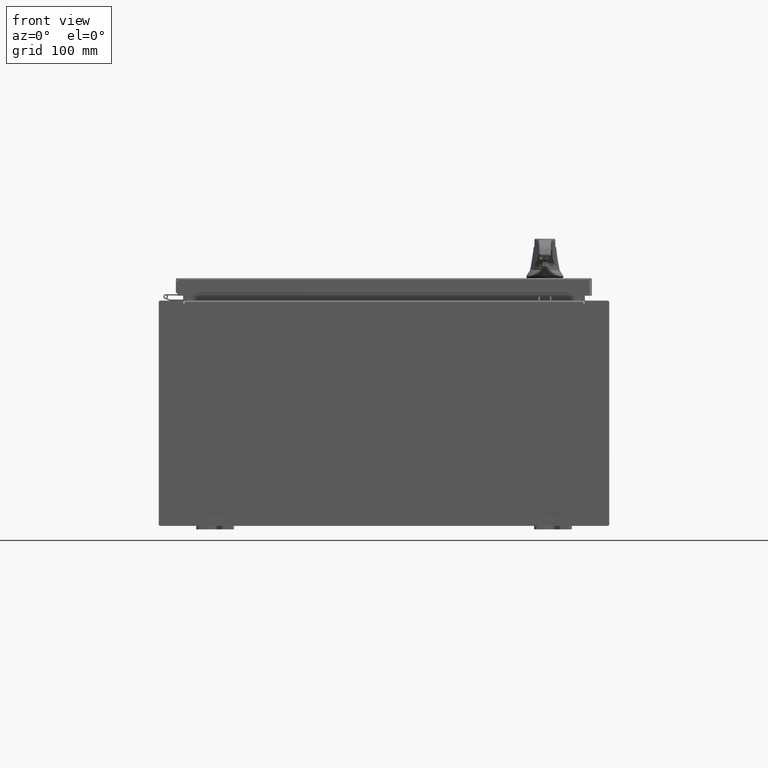
[diagram: clean part render]
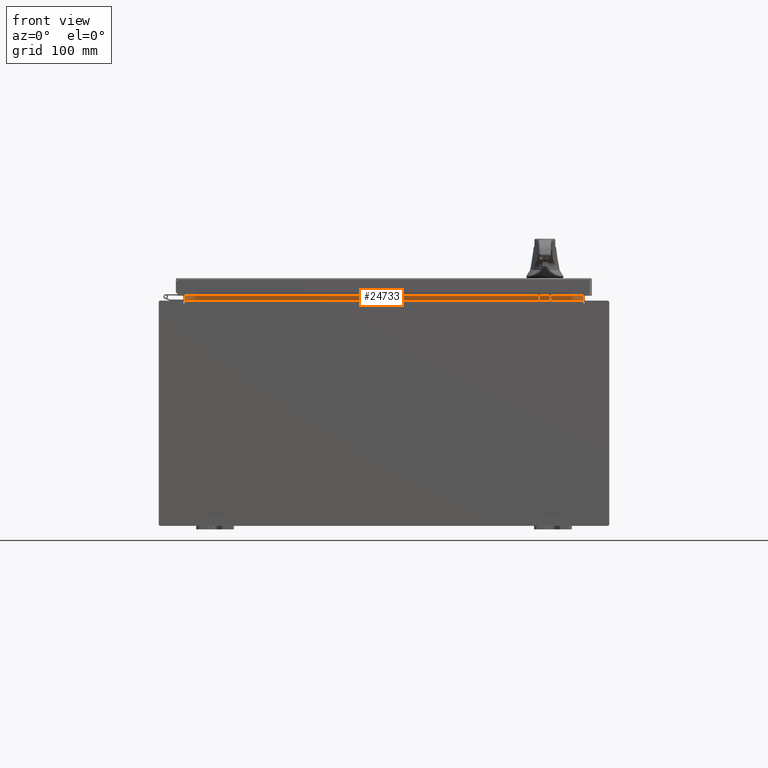
[diagram: same view with one face highlighted and labeled with its STEP entity id]
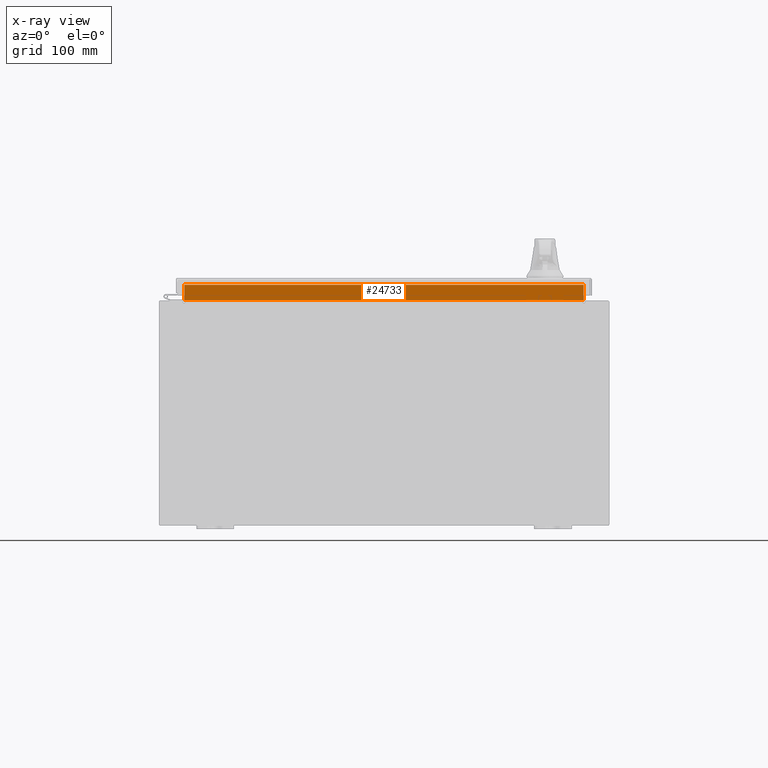
[diagram: x-ray of the same camera — body ghosted, the highlighted face saturated]
A machine part, front view. The second image highlights one B-rep face of the part: STEP entity #24733.
The next image is the same camera in x-ray: the body ghosted, the highlighted face saturated — about 0% of this face is hidden behind the body in this view.
In plain terms, the highlighted planar face has unit normal (0, -1, 0).
Its self-contained STEP definition (entity closure, byte-faithful):
#3957 = EDGE_CURVE ( 'NONE', #91693, #43971, #37656, .T. ) ;
#11491 = CARTESIAN_POINT ( 'NONE',  ( 10.63720000000000200, -1.300300000000000700, 6.837600000000007200 ) ) ;
#15335 = ORIENTED_EDGE ( 'NONE', *, *, #3957, .F. ) ;
#17300 = VECTOR ( 'NONE', #62250, 39.37007874015748100 ) ;
#17820 = VERTEX_POINT ( 'NONE', #69086 ) ;
#21343 = CARTESIAN_POINT ( 'NONE',  ( -10.63720000000000200, -1.300299999999999800, 6.013000000000003500 ) ) ;
#24733 = ADVANCED_FACE ( 'NONE', ( #53452 ), #83379, .T. ) ;
#30137 = EDGE_CURVE ( 'NONE', #104864, #91693, #66399, .T. ) ;
#30265 = CARTESIAN_POINT ( 'NONE',  ( 10.63720000000000200, -1.300300000000000700, 6.925300000000007100 ) ) ;
#34580 = AXIS2_PLACEMENT_3D ( 'NONE', #91273, #109457, #57585 ) ;
#35531 = CARTESIAN_POINT ( 'NONE',  ( 10.63720000000000400, -1.300299999999999800, 6.013000000000005200 ) ) ;
#37656 = LINE ( 'NONE', #45209, #17300 ) ;
#39409 = ORIENTED_EDGE ( 'NONE', *, *, #30137, .F. ) ;
#43971 = VERTEX_POINT ( 'NONE', #83625 ) ;
#44961 = ORIENTED_EDGE ( 'NONE', *, *, #73370, .F. ) ;
#45209 = CARTESIAN_POINT ( 'NONE',  ( 10.63719999999999600, -1.300300000000000900, 6.837600000000007200 ) ) ;
#48659 = LINE ( 'NONE', #21343, #54094 ) ;
#53452 = FACE_OUTER_BOUND ( 'NONE', #94025, .T. ) ;
#54082 = EDGE_CURVE ( 'NONE', #43971, #17820, #83444, .T. ) ;
#54094 = VECTOR ( 'NONE', #73291, 39.37007874015748100 ) ;
#55615 = ORIENTED_EDGE ( 'NONE', *, *, #54082, .F. ) ;
#57313 = DIRECTION ( 'NONE',  ( -0.0000000000000000000, 8.857174949738214300E-016, -1.000000000000000000 ) ) ;
#57585 = DIRECTION ( 'NONE',  ( 0.0000000000000000000, -8.857174949738224200E-016, 1.000000000000000000 ) ) ;
#62250 = DIRECTION ( 'NONE',  ( -1.000000000000000000, -0.0000000000000000000, -0.0000000000000000000 ) ) ;
#66399 = LINE ( 'NONE', #30265, #109734 ) ;
#69086 = CARTESIAN_POINT ( 'NONE',  ( -10.63720000000000400, -1.300299999999999800, 6.013000000000005200 ) ) ;
#73291 = DIRECTION ( 'NONE',  ( 1.000000000000000000, 1.027280861002618300E-016, 1.027280861002618300E-016 ) ) ;
#73370 = EDGE_CURVE ( 'NONE', #17820, #104864, #48659, .T. ) ;
#83379 = PLANE ( 'NONE',  #34580 ) ;
#83444 = LINE ( 'NONE', #109194, #106422 ) ;
#83625 = CARTESIAN_POINT ( 'NONE',  ( -10.63719999999998800, -1.300300000000000900, 6.837600000000007200 ) ) ;
#90850 = DIRECTION ( 'NONE',  ( -0.0000000000000000000, -8.857174949738224200E-016, 1.000000000000000000 ) ) ;
#91273 = CARTESIAN_POINT ( 'NONE',  ( 1.183117784283575500E-031, -1.300299999999994700, -1.151698458714456500E-015 ) ) ;
#91693 = VERTEX_POINT ( 'NONE', #11491 ) ;
#94025 = EDGE_LOOP ( 'NONE', ( #55615, #15335, #39409, #44961 ) ) ;
#104864 = VERTEX_POINT ( 'NONE', #35531 ) ;
#106422 = VECTOR ( 'NONE', #57313, 39.37007874015748100 ) ;
#109194 = CARTESIAN_POINT ( 'NONE',  ( -10.63720000000000200, -1.300299999999999800, 6.000000000000003600 ) ) ;
#109457 = DIRECTION ( 'NONE',  ( -9.098806308417904000E-032, 1.000000000000000000, 8.857174949738224200E-016 ) ) ;
#109734 = VECTOR ( 'NONE', #90850, 39.37007874015748100 ) ;